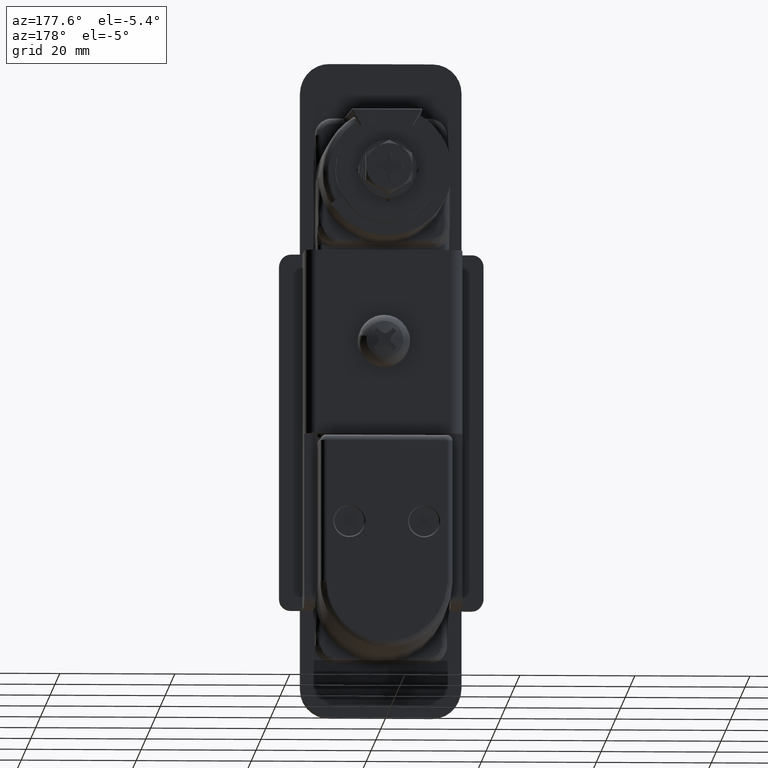
[diagram: clean part render]
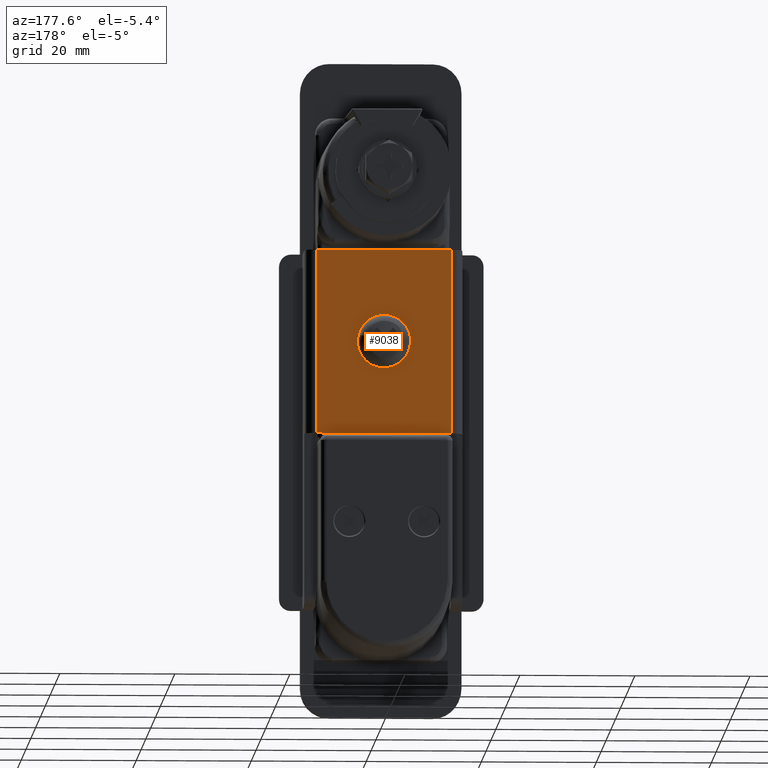
[diagram: same view with one face highlighted and labeled with its STEP entity id]
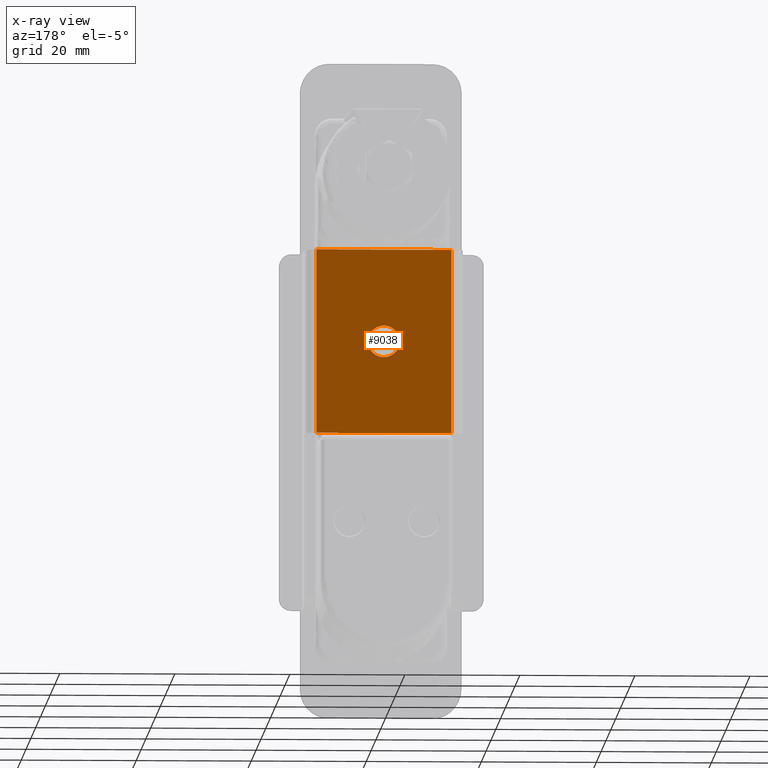
[diagram: x-ray of the same camera — body ghosted, the highlighted face saturated]
A machine part, auxiliary view. The second image highlights one B-rep face of the part: STEP entity #9038.
The next image is the same camera in x-ray: the body ghosted, the highlighted face saturated — about 0% of this face is hidden behind the body in this view.
In plain terms, the highlighted face is a freeform B-spline surface patch.
Its self-contained STEP definition (entity closure, byte-faithful):
#8424=CARTESIAN_POINT('',(1.927500984359527,12.999994665498731,-30.461439065871549));
#8425=VERTEX_POINT('',#8424);
#8426=CARTESIAN_POINT('',(0.0,12.999994665527341,-31.250000000000000));
#8427=VERTEX_POINT('',#8426);
#8428=CARTESIAN_POINT('',(1.927500984359527,12.999994665498731,-30.461439065871549));
#8429=CARTESIAN_POINT('',(1.689639678816528,12.999994665502429,-30.695587004565841));
#8430=CARTESIAN_POINT('',(1.089783876782102,12.999994665510741,-31.100564208504810));
#8431=CARTESIAN_POINT('',(0.378301591880777,12.999994665522010,-31.250497286611399));
#8432=CARTESIAN_POINT('',(0.0,12.999994665527341,-31.250000000000000));
#8433=B_SPLINE_CURVE_WITH_KNOTS('',3,(#8428,#8429,#8430,#8431,#8432),.UNSPECIFIED.,.F.,.U.,(4,1,4),(0.000000045462492,1.001212766085145,2.135899444357679),.UNSPECIFIED.);
#8434=EDGE_CURVE('',#8425,#8427,#8433,.T.);
#8436=CARTESIAN_POINT('',(-2.749999999998982,12.999994665527341,-28.499997633214569));
#8437=VERTEX_POINT('',#8436);
#8438=CARTESIAN_POINT('',(0.0,12.999994665527341,-31.250000000000000));
#8439=CARTESIAN_POINT('',(-0.224980065124053,12.999994665527581,-31.250046366307629));
#8440=CARTESIAN_POINT('',(-0.697440839393820,12.999994665527000,-31.191722941060750));
#8441=CARTESIAN_POINT('',(-1.308791934255673,12.999994665527330,-30.947277544121860));
#8442=CARTESIAN_POINT('',(-1.881803989964373,12.999994665527440,-30.543700639330979));
#8443=CARTESIAN_POINT('',(-2.327455963788293,12.999994665527270,-30.027105778252160));
#8444=CARTESIAN_POINT('',(-2.666663646665283,12.999994665527479,-29.309858873779159));
#8445=CARTESIAN_POINT('',(-2.750137398008999,12.999994665527071,-28.792484621189939));
#8446=CARTESIAN_POINT('',(-2.749999999998982,12.999994665527341,-28.499997633214569));
#8447=B_SPLINE_CURVE_WITH_KNOTS('',3,(#8438,#8439,#8440,#8441,#8442,#8443,#8444,#8445,#8446),.UNSPECIFIED.,.F.,.U.,(4,1,1,1,1,1,4),(0.000000148694967,0.674952408698245,1.417448830138685,1.957446136591666,2.767365713575311,3.442350140912879,4.319799630918284),.UNSPECIFIED.);
#8448=EDGE_CURVE('',#8427,#8437,#8447,.T.);
#8450=CARTESIAN_POINT('',(-1.927500984359527,12.999994665498750,-26.538560934128451));
#8451=VERTEX_POINT('',#8450);
#8452=CARTESIAN_POINT('',(-2.749999999998982,12.999994665527341,-28.499997633214569));
#8453=CARTESIAN_POINT('',(-2.750542238417805,12.999994665521539,-28.113187177335270));
#8454=CARTESIAN_POINT('',(-2.593652860983627,12.999994665511339,-27.385762079176789));
#8455=CARTESIAN_POINT('',(-2.171134531300957,12.999994665502159,-26.777540747146080));
#8456=CARTESIAN_POINT('',(-1.927500984359527,12.999994665498750,-26.538560934128451));
#8457=B_SPLINE_CURVE_WITH_KNOTS('',3,(#8452,#8453,#8454,#8455,#8456),.UNSPECIFIED.,.F.,.U.,(4,1,4),(0.000000050807047,1.160184758316889,2.183896989359834),.UNSPECIFIED.);
#8458=EDGE_CURVE('',#8437,#8451,#8457,.T.);
#8527=CARTESIAN_POINT('',(2.749999999998981,12.999994665527330,-28.500002366785431));
#8528=VERTEX_POINT('',#8527);
#8529=CARTESIAN_POINT('',(2.749999999998981,12.999994665527330,-28.500002366785431));
#8530=CARTESIAN_POINT('',(2.750543164811521,12.999994665521660,-28.886812472579230));
#8531=CARTESIAN_POINT('',(2.593650682640684,12.999994665511270,-29.614237950650601));
#8532=CARTESIAN_POINT('',(2.171136377648953,12.999994665502140,-30.222459537938310));
#8533=CARTESIAN_POINT('',(1.927500984359527,12.999994665498731,-30.461439065871549));
#8534=B_SPLINE_CURVE_WITH_KNOTS('',3,(#8529,#8530,#8531,#8532,#8533),.UNSPECIFIED.,.F.,.U.,(4,1,4),(0.000000050807145,1.160184758316806,2.183896989359834),.UNSPECIFIED.);
#8535=EDGE_CURVE('',#8528,#8425,#8534,.T.);
#8572=CARTESIAN_POINT('',(0.0,12.999994665527341,-25.750000000000000));
#8573=VERTEX_POINT('',#8572);
#8574=CARTESIAN_POINT('',(-1.927500984359527,12.999994665498750,-26.538560934128451));
#8575=CARTESIAN_POINT('',(-1.689636003517232,12.999994665502330,-26.304424928812900));
#8576=CARTESIAN_POINT('',(-1.089800234506217,12.999994665511240,-25.899380385464909));
#8577=CARTESIAN_POINT('',(-0.378290622073435,12.999994665521699,-25.749552230113220));
#8578=CARTESIAN_POINT('',(0.0,12.999994665527341,-25.750000000000000));
#8579=B_SPLINE_CURVE_WITH_KNOTS('',3,(#8574,#8575,#8576,#8577,#8578),.UNSPECIFIED.,.F.,.U.,(4,1,4),(0.000000045462578,1.001212766085176,2.135899444357690),.UNSPECIFIED.);
#8580=EDGE_CURVE('',#8451,#8573,#8579,.T.);
#8582=CARTESIAN_POINT('',(0.0,12.999994665527341,-25.750000000000000));
#8583=CARTESIAN_POINT('',(0.337520995730278,12.999994665527311,-25.749740024273699));
#8584=CARTESIAN_POINT('',(0.854761426900838,12.999994665527209,-25.846459595075409));
#8585=CARTESIAN_POINT('',(1.480731309210600,12.999994665527440,-26.161702344178710));
#8586=CARTESIAN_POINT('',(1.944134580970261,12.999994665527311,-26.523280914705929));
#8587=CARTESIAN_POINT('',(2.318006814580318,12.999994665527440,-26.978875132441971));
#8588=CARTESIAN_POINT('',(2.653502593821187,12.999994665527030,-27.645251579896691));
#8589=CARTESIAN_POINT('',(2.750288553319025,12.999994665527741,-28.162474557949380));
#8590=CARTESIAN_POINT('',(2.749999999998981,12.999994665527330,-28.500002366785431));
#8591=B_SPLINE_CURVE_WITH_KNOTS('',3,(#8582,#8583,#8584,#8585,#8586,#8587,#8588,#8589,#8590),.UNSPECIFIED.,.F.,.U.,(4,1,1,1,1,1,4),(0.000000148694529,1.012452842421737,1.552431029377432,2.092420739013297,2.767365713574865,3.307347837732636,4.319799630918284),.UNSPECIFIED.);
#8592=EDGE_CURVE('',#8573,#8528,#8591,.T.);
#8967=CARTESIAN_POINT('',(-11.749600000000120,12.999994665527341,-44.500000000000000));
#8968=VERTEX_POINT('',#8967);
#8969=CARTESIAN_POINT('',(-11.749600000000120,12.999994665527341,-12.500000000000000));
#8970=VERTEX_POINT('',#8969);
#8971=CARTESIAN_POINT('',(-11.749600000000120,12.999994665527341,-44.500000000000000));
#8972=CARTESIAN_POINT('',(-11.749600000000120,12.999994665527341,-12.500000000000000));
#8973=QUASI_UNIFORM_CURVE('',1,(#8971,#8972),.UNSPECIFIED.,.F.,.U.);
#8974=EDGE_CURVE('',#8968,#8970,#8973,.T.);
#9003=CARTESIAN_POINT('',(12.923804974453221,12.999994665527341,-10.901600062022210));
#9004=CARTESIAN_POINT('',(12.923804974453221,12.999994665527341,-46.098400796284679));
#9005=CARTESIAN_POINT('',(-12.923405604761729,12.999994665527341,-10.901600062022210));
#9006=CARTESIAN_POINT('',(-12.923405604761729,12.999994665527341,-46.098400796284679));
#9007=B_SPLINE_SURFACE_WITH_KNOTS('',1,1,((#9003,#9005),(#9004,#9006)),.UNSPECIFIED.,.F.,.F.,.U.,(2,2),(2,2),(0.0,35.196800734262467),(0.0,25.847210579214959),.UNSPECIFIED.);
#9008=CARTESIAN_POINT('',(11.750000000000000,12.999994665527341,-44.500000000000000));
#9009=VERTEX_POINT('',#9008);
#9010=CARTESIAN_POINT('',(11.750000000000000,12.999994665527341,-12.500000000000000));
#9011=VERTEX_POINT('',#9010);
#9012=CARTESIAN_POINT('',(11.750000000000000,12.999994665527341,-44.500000000000000));
#9013=CARTESIAN_POINT('',(11.750000000000000,12.999994665527341,-12.500000000000000));
#9014=QUASI_UNIFORM_CURVE('',1,(#9012,#9013),.UNSPECIFIED.,.F.,.U.);
#9015=EDGE_CURVE('',#9009,#9011,#9014,.T.);
#9016=ORIENTED_EDGE('',*,*,#9015,.F.);
#9017=CARTESIAN_POINT('',(11.750000000000000,12.999994665527341,-44.500000000000000));
#9018=CARTESIAN_POINT('',(-11.749600000000120,12.999994665527341,-44.500000000000000));
#9019=QUASI_UNIFORM_CURVE('',1,(#9017,#9018),.UNSPECIFIED.,.F.,.U.);
#9020=EDGE_CURVE('',#9009,#8968,#9019,.T.);
#9021=ORIENTED_EDGE('',*,*,#9020,.T.);
#9022=ORIENTED_EDGE('',*,*,#8974,.T.);
#9023=CARTESIAN_POINT('',(11.750000000000000,12.999994665527341,-12.500000000000000));
#9024=CARTESIAN_POINT('',(-11.749600000000120,12.999994665527341,-12.500000000000000));
#9025=QUASI_UNIFORM_CURVE('',1,(#9023,#9024),.UNSPECIFIED.,.F.,.U.);
#9026=EDGE_CURVE('',#9011,#8970,#9025,.T.);
#9027=ORIENTED_EDGE('',*,*,#9026,.F.);
#9028=EDGE_LOOP('',(#9016,#9021,#9022,#9027));
#9029=FACE_OUTER_BOUND('',#9028,.T.);
#9030=ORIENTED_EDGE('',*,*,#8592,.F.);
#9031=ORIENTED_EDGE('',*,*,#8580,.F.);
#9032=ORIENTED_EDGE('',*,*,#8458,.F.);
#9033=ORIENTED_EDGE('',*,*,#8448,.F.);
#9034=ORIENTED_EDGE('',*,*,#8434,.F.);
#9035=ORIENTED_EDGE('',*,*,#8535,.F.);
#9036=EDGE_LOOP('',(#9030,#9031,#9032,#9033,#9034,#9035));
#9037=FACE_BOUND('',#9036,.T.);
#9038=ADVANCED_FACE('',(#9029,#9037),#9007,.T.);